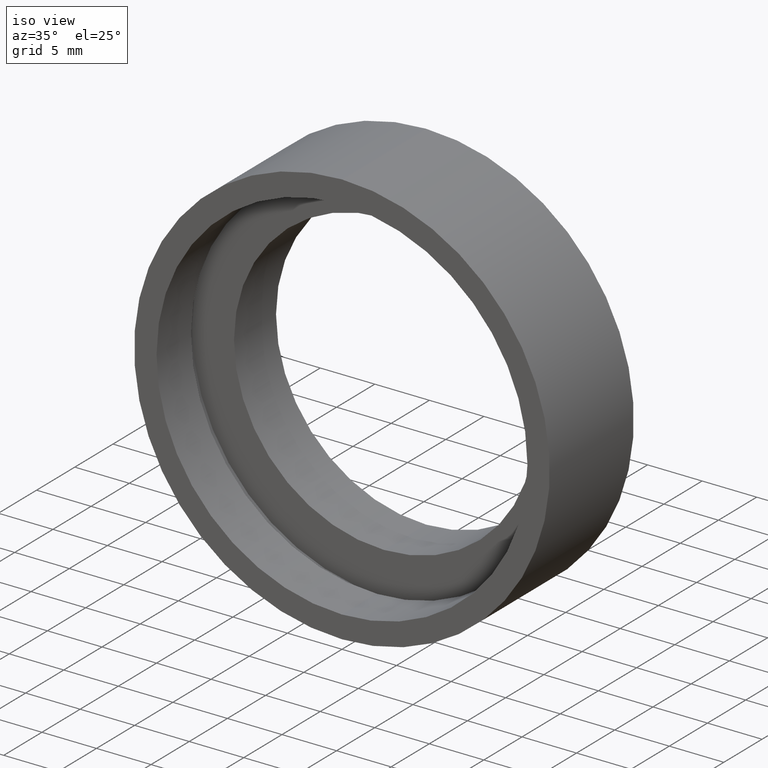
[diagram: clean part render]
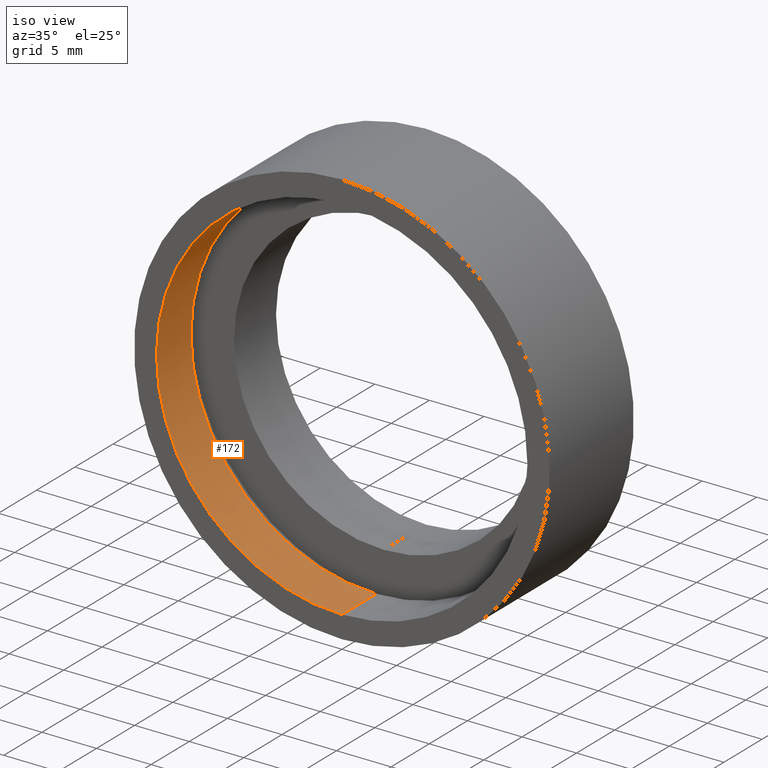
[diagram: same view with one face highlighted and labeled with its STEP entity id]
A machine part, iso view. The second image highlights one B-rep face of the part: STEP entity #172.
In plain terms, the highlighted cylindrical surface (partial cylindrical patch) has radius 17 mm, axis along (-0, 1, -0).
Its self-contained STEP definition (entity closure, byte-faithful):
#15 = CARTESIAN_POINT ( 'NONE',  ( 0.0000000000000000000, 4.499999999999997300, 17.00000000000000700 ) ) ;
#18 = ORIENTED_EDGE ( 'NONE', *, *, #302, .T. ) ;
#20 = CARTESIAN_POINT ( 'NONE',  ( 2.081899558550501500E-015, 0.0000000000000000000, -17.00000000000000700 ) ) ;
#34 = LINE ( 'NONE', #393, #129 ) ;
#42 = LINE ( 'NONE', #121, #51 ) ;
#44 = CYLINDRICAL_SURFACE ( 'NONE', #128, 17.00000000000000700 ) ;
#47 = DIRECTION ( 'NONE',  ( -0.0000000000000000000, 1.000000000000000000, -0.0000000000000000000 ) ) ;
#51 = VECTOR ( 'NONE', #179, 1000.000000000000000 ) ;
#64 = ORIENTED_EDGE ( 'NONE', *, *, #406, .F. ) ;
#92 = CARTESIAN_POINT ( 'NONE',  ( 2.081899558550501500E-015, 4.499999999999997300, -17.00000000000000700 ) ) ;
#93 = DIRECTION ( 'NONE',  ( -0.0000000000000000000, 1.000000000000000000, -0.0000000000000000000 ) ) ;
#97 = VERTEX_POINT ( 'NONE', #20 ) ;
#102 = AXIS2_PLACEMENT_3D ( 'NONE', #153, #300, #188 ) ;
#121 = CARTESIAN_POINT ( 'NONE',  ( 0.0000000000000000000, 60.02082041425541100, 17.00000000000000700 ) ) ;
#128 = AXIS2_PLACEMENT_3D ( 'NONE', #219, #235, #403 ) ;
#129 = VECTOR ( 'NONE', #47, 1000.000000000000000 ) ;
#153 = CARTESIAN_POINT ( 'NONE',  ( 0.0000000000000000000, 4.499999999999997300, 0.0000000000000000000 ) ) ;
#156 = VERTEX_POINT ( 'NONE', #178 ) ;
#172 = ADVANCED_FACE ( 'NONE', ( #421 ), #44, .F. ) ;
#178 = CARTESIAN_POINT ( 'NONE',  ( 0.0000000000000000000, 0.0000000000000000000, 17.00000000000000700 ) ) ;
#179 = DIRECTION ( 'NONE',  ( -0.0000000000000000000, 1.000000000000000000, -0.0000000000000000000 ) ) ;
#188 = DIRECTION ( 'NONE',  ( 0.0000000000000000000, 0.0000000000000000000, 1.000000000000000000 ) ) ;
#209 = EDGE_CURVE ( 'NONE', #346, #263, #405, .T. ) ;
#219 = CARTESIAN_POINT ( 'NONE',  ( 0.0000000000000000000, 60.02082041425541100, 0.0000000000000000000 ) ) ;
#235 = DIRECTION ( 'NONE',  ( -0.0000000000000000000, 1.000000000000000000, -0.0000000000000000000 ) ) ;
#249 = AXIS2_PLACEMENT_3D ( 'NONE', #401, #93, #369 ) ;
#263 = VERTEX_POINT ( 'NONE', #15 ) ;
#275 = ORIENTED_EDGE ( 'NONE', *, *, #209, .T. ) ;
#300 = DIRECTION ( 'NONE',  ( -0.0000000000000000000, 1.000000000000000000, -0.0000000000000000000 ) ) ;
#302 = EDGE_CURVE ( 'NONE', #97, #346, #34, .T. ) ;
#346 = VERTEX_POINT ( 'NONE', #92 ) ;
#362 = CIRCLE ( 'NONE', #249, 17.00000000000000700 ) ;
#365 = EDGE_LOOP ( 'NONE', ( #374, #18, #275, #64 ) ) ;
#369 = DIRECTION ( 'NONE',  ( 0.0000000000000000000, 0.0000000000000000000, 1.000000000000000000 ) ) ;
#371 = EDGE_CURVE ( 'NONE', #97, #156, #362, .T. ) ;
#374 = ORIENTED_EDGE ( 'NONE', *, *, #371, .F. ) ;
#393 = CARTESIAN_POINT ( 'NONE',  ( 2.081899558550501500E-015, 60.02082041425541100, -17.00000000000000700 ) ) ;
#401 = CARTESIAN_POINT ( 'NONE',  ( 0.0000000000000000000, 0.0000000000000000000, 0.0000000000000000000 ) ) ;
#403 = DIRECTION ( 'NONE',  ( 0.0000000000000000000, 0.0000000000000000000, 1.000000000000000000 ) ) ;
#405 = CIRCLE ( 'NONE', #102, 17.00000000000000700 ) ;
#406 = EDGE_CURVE ( 'NONE', #156, #263, #42, .T. ) ;
#421 = FACE_OUTER_BOUND ( 'NONE', #365, .T. ) ;